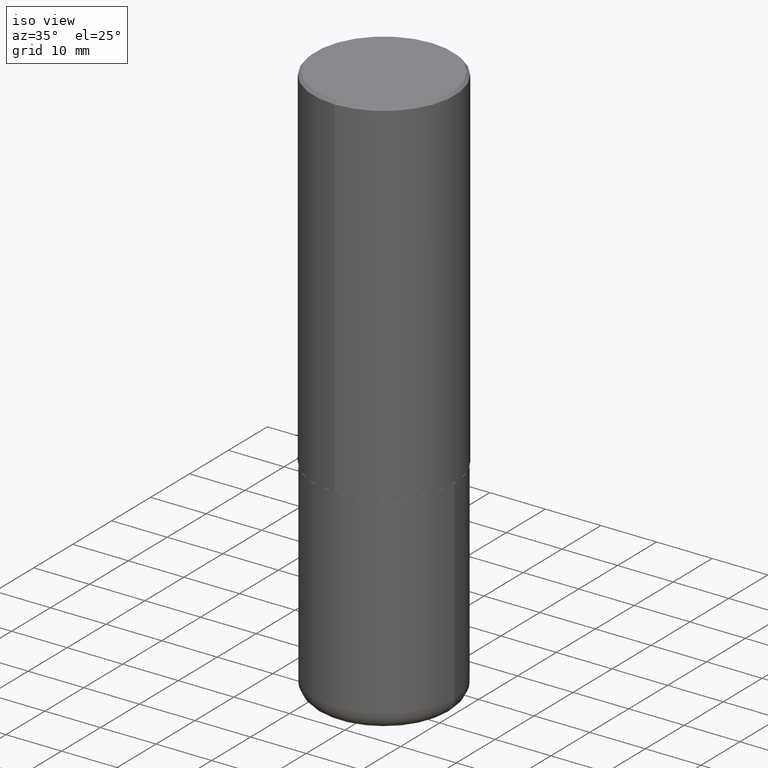
[diagram: clean part render]
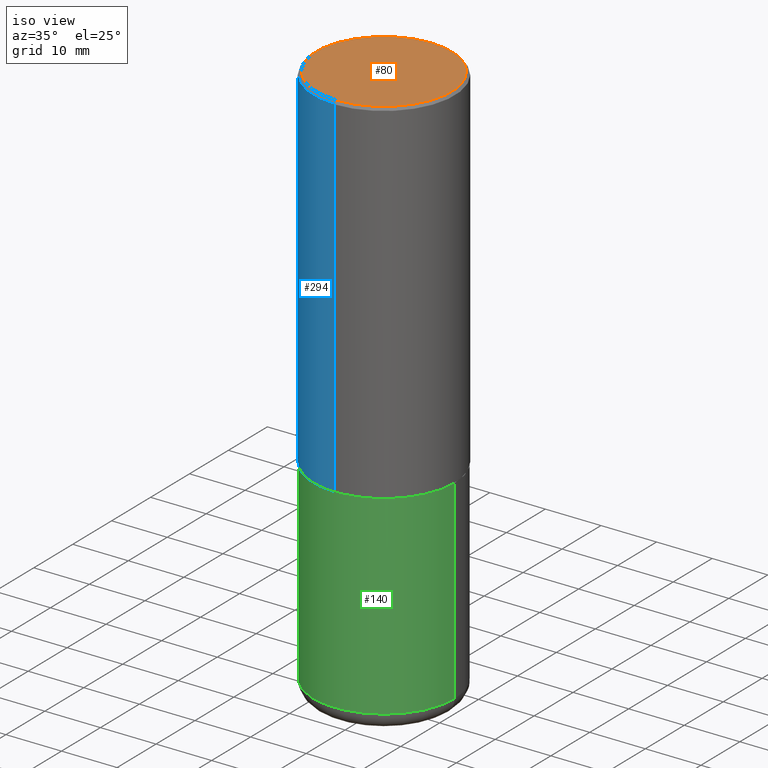
[diagram: same view with three faces highlighted in distinct colors, each labeled with its STEP entity id]
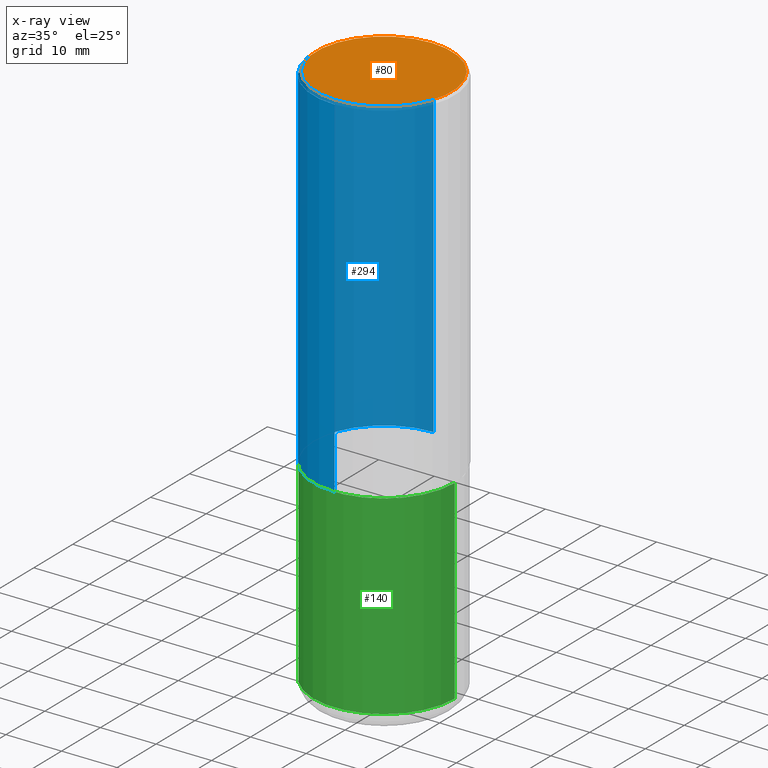
[diagram: x-ray of the same camera — body ghosted, the three highlighted faces saturated]
A machine part, iso view with three faces highlighted in distinct colors.
The next image is the same camera in x-ray (body ghosted, the three faces saturated) — at least one of them is partly hidden behind the body in this view.
Their STEP definitions:

[orange] entity #80 — the highlighted planar face has unit normal (0, -0, -1).
#10 = DIRECTION ( 'NONE',  ( 2.444946167972934647E-29, -3.492229786509738161E-15, -1.000000000000000000 ) ) ;
#56 = EDGE_CURVE ( 'NONE', #263, #322, #221, .T. ) ;
#80 = ADVANCED_FACE ( 'NONE', ( #181 ), #280, .F. ) ;
#82 = DIRECTION ( 'NONE',  ( -6.982962677686265922E-15, -1.000000000000000000, 3.492229786509738161E-15 ) ) ;
#92 = DIRECTION ( 'NONE',  ( -6.982962677686265922E-15, -1.000000000000000000, 3.492229786509738161E-15 ) ) ;
#113 = DIRECTION ( 'NONE',  ( 6.982962677686265922E-15, 1.000000000000000000, -3.492229786509738161E-15 ) ) ;
#136 = AXIS2_PLACEMENT_3D ( 'NONE', #252, #286, #92 ) ;
#139 = ORIENTED_EDGE ( 'NONE', *, *, #218, .T. ) ;
#181 = FACE_OUTER_BOUND ( 'NONE', #260, .T. ) ;
#183 = CARTESIAN_POINT ( 'NONE',  ( 3.421651712066270057E-15, 0.4799999999999998157, -1.449679880669387470E-15 ) ) ;
#201 = AXIS2_PLACEMENT_3D ( 'NONE', #403, #242, #82 ) ;
#213 = CIRCLE ( 'NONE', #136, 0.4799999999999998157 ) ;
#218 = EDGE_CURVE ( 'NONE', #322, #263, #213, .T. ) ;
#221 = CIRCLE ( 'NONE', #201, 0.4799999999999998157 ) ;
#240 = CARTESIAN_POINT ( 'NONE',  ( 3.351822085289406364E-15, 0.4799999999999998157, -1.562975089097030468E-15 ) ) ;
#242 = DIRECTION ( 'NONE',  ( -2.444946167972934928E-29, 3.492229786509738161E-15, 1.000000000000000000 ) ) ;
#252 = CARTESIAN_POINT ( 'NONE',  ( -5.540013713897219376E-45, 7.913058030796886371E-31, 2.265904168552862416E-16 ) ) ;
#260 = EDGE_LOOP ( 'NONE', ( #333, #139 ) ) ;
#263 = VERTEX_POINT ( 'NONE', #183 ) ;
#280 = PLANE ( 'NONE',  #282 ) ;
#282 = AXIS2_PLACEMENT_3D ( 'NONE', #240, #10, #113 ) ;
#286 = DIRECTION ( 'NONE',  ( -2.444946167972934928E-29, 3.492229786509738161E-15, 1.000000000000000000 ) ) ;
#322 = VERTEX_POINT ( 'NONE', #404 ) ;
#333 = ORIENTED_EDGE ( 'NONE', *, *, #56, .T. ) ;
#403 = CARTESIAN_POINT ( 'NONE',  ( -5.540013713897219376E-45, 7.913058030796886371E-31, 2.265904168552862416E-16 ) ) ;
#404 = CARTESIAN_POINT ( 'NONE',  ( -3.361644018908049661E-15, -0.4799999999999998157, 1.902860714379959855E-15 ) ) ;

[blue] entity #294 — the highlighted cylindrical surface (partial cylindrical patch) has radius 12.7 mm, axis along (-0, 0, 1).
#6 = VERTEX_POINT ( 'NONE', #117 ) ;
#21 = CARTESIAN_POINT ( 'NONE',  ( 3.552713678800501718E-15, 0.5000000000000001110, -1.746114893254869475E-15 ) ) ;
#28 = DIRECTION ( 'NONE',  ( -2.444946167972934928E-29, 3.492229786509738161E-15, 1.000000000000000000 ) ) ;
#29 = VERTEX_POINT ( 'NONE', #344 ) ;
#51 = AXIS2_PLACEMENT_3D ( 'NONE', #90, #28, #161 ) ;
#69 = AXIS2_PLACEMENT_3D ( 'NONE', #409, #339, #150 ) ;
#75 = CARTESIAN_POINT ( 'NONE',  ( 4.889892335945895815E-31, -6.984459573019513448E-17, -0.02000000000000010797 ) ) ;
#90 = CARTESIAN_POINT ( 'NONE',  ( 6.109920473764365540E-29, -8.727082236487837614E-15, -2.499000000000000110 ) ) ;
#96 = EDGE_LOOP ( 'NONE', ( #334, #137, #391, #230 ) ) ;
#101 = EDGE_CURVE ( 'NONE', #29, #6, #256, .T. ) ;
#117 = CARTESIAN_POINT ( 'NONE',  ( -3.430248998885764992E-15, -0.5000000000000001110, -0.01999999999999835937 ) ) ;
#126 = LINE ( 'NONE', #408, #407 ) ;
#137 = ORIENTED_EDGE ( 'NONE', *, *, #233, .T. ) ;
#144 = DIRECTION ( 'NONE',  ( -6.982962677686265922E-15, -1.000000000000000000, 3.491643216902136408E-15 ) ) ;
#150 = DIRECTION ( 'NONE',  ( -6.982962677686265922E-15, -1.000000000000000000, 3.492229786509738161E-15 ) ) ;
#153 = CYLINDRICAL_SURFACE ( 'NONE', #69, 0.5000000000000001110 ) ;
#157 = VECTOR ( 'NONE', #348, 39.37007874015748143 ) ;
#161 = DIRECTION ( 'NONE',  ( -6.982962677686266711E-15, -1.000000000000000000, 3.278217592397114284E-15 ) ) ;
#185 = EDGE_CURVE ( 'NONE', #200, #6, #126, .T. ) ;
#200 = VERTEX_POINT ( 'NONE', #319 ) ;
#230 = ORIENTED_EDGE ( 'NONE', *, *, #101, .F. ) ;
#231 = CIRCLE ( 'NONE', #51, 0.5000000000000002220 ) ;
#233 = EDGE_CURVE ( 'NONE', #266, #200, #231, .T. ) ;
#244 = LINE ( 'NONE', #21, #157 ) ;
#256 = CIRCLE ( 'NONE', #356, 0.5000000000000000000 ) ;
#266 = VERTEX_POINT ( 'NONE', #306 ) ;
#294 = ADVANCED_FACE ( 'NONE', ( #371 ), #153, .T. ) ;
#306 = CARTESIAN_POINT ( 'NONE',  ( 3.552713678800533273E-15, 0.4999999999999916178, -2.499000000000001886 ) ) ;
#319 = CARTESIAN_POINT ( 'NONE',  ( -3.491481338843073796E-15, -0.5000000000000089928, -2.498999999999998778 ) ) ;
#334 = ORIENTED_EDGE ( 'NONE', *, *, #357, .F. ) ;
#336 = DIRECTION ( 'NONE',  ( -2.444946167972934928E-29, 3.492229786509738161E-15, 1.000000000000000000 ) ) ;
#339 = DIRECTION ( 'NONE',  ( -2.444946167972934928E-29, 3.492229786509738161E-15, 1.000000000000000000 ) ) ;
#344 = CARTESIAN_POINT ( 'NONE',  ( 3.491481338843133355E-15, 0.4999999999999999445, -0.02000000000000185310 ) ) ;
#348 = DIRECTION ( 'NONE',  ( -2.444946167972934928E-29, 3.492229786509738161E-15, 1.000000000000000000 ) ) ;
#356 = AXIS2_PLACEMENT_3D ( 'NONE', #75, #336, #144 ) ;
#357 = EDGE_CURVE ( 'NONE', #266, #29, #244, .T. ) ;
#371 = FACE_OUTER_BOUND ( 'NONE', #96, .T. ) ;
#382 = DIRECTION ( 'NONE',  ( -2.444946167972934928E-29, 3.492229786509738161E-15, 1.000000000000000000 ) ) ;
#391 = ORIENTED_EDGE ( 'NONE', *, *, #185, .T. ) ;
#407 = VECTOR ( 'NONE', #382, 39.37007874015748143 ) ;
#408 = CARTESIAN_POINT ( 'NONE',  ( -3.491481338843133750E-15, -0.5000000000000001110, 1.746114893254869475E-15 ) ) ;
#409 = CARTESIAN_POINT ( 'NONE',  ( 0.000000000000000000, 0.000000000000000000, 0.000000000000000000 ) ) ;

[green] entity #140 — the highlighted cylindrical surface (partial cylindrical patch) has radius 12.7 mm, axis along (-0, 0, 1).
#2 = VERTEX_POINT ( 'NONE', #154 ) ;
#3 = EDGE_CURVE ( 'NONE', #106, #397, #16, .T. ) ;
#16 = LINE ( 'NONE', #111, #394 ) ;
#23 = EDGE_CURVE ( 'NONE', #257, #2, #77, .T. ) ;
#32 = AXIS2_PLACEMENT_3D ( 'NONE', #220, #379, #159 ) ;
#40 = ORIENTED_EDGE ( 'NONE', *, *, #3, .F. ) ;
#48 = CARTESIAN_POINT ( 'NONE',  ( 9.488418967998330085E-29, -1.354694759471140570E-14, -3.880000000000000338 ) ) ;
#50 = EDGE_CURVE ( 'NONE', #106, #257, #264, .T. ) ;
#61 = CYLINDRICAL_SURFACE ( 'NONE', #383, 0.5000000000000000000 ) ;
#77 = LINE ( 'NONE', #178, #164 ) ;
#83 = CARTESIAN_POINT ( 'NONE',  ( -0.5000000000000000000, -7.585111792109135179E-15, -2.500000000000000000 ) ) ;
#106 = VERTEX_POINT ( 'NONE', #400 ) ;
#111 = CARTESIAN_POINT ( 'NONE',  ( -0.5000000000000000000, 3.552713678800500929E-15, -2.459467545127452891E-29 ) ) ;
#140 = ADVANCED_FACE ( 'NONE', ( #284 ), #61, .T. ) ;
#149 = DIRECTION ( 'NONE',  ( -2.445468806185136597E-29, 3.491481338843145583E-15, 1.000000000000000000 ) ) ;
#154 = CARTESIAN_POINT ( 'NONE',  ( 0.5000000000000000000, -1.222018468595099830E-14, -2.500000000000000000 ) ) ;
#159 = DIRECTION ( 'NONE',  ( 1.000000000000000000, -6.982962677686269077E-15, 0.000000000000000000 ) ) ;
#164 = VECTOR ( 'NONE', #246, 39.37007874015748143 ) ;
#171 = CIRCLE ( 'NONE', #32, 0.5000000000000000000 ) ;
#178 = CARTESIAN_POINT ( 'NONE',  ( 0.5000000000000000000, -3.491481338843133355E-15, 2.438088387897967896E-29 ) ) ;
#198 = ORIENTED_EDGE ( 'NONE', *, *, #23, .T. ) ;
#220 = CARTESIAN_POINT ( 'NONE',  ( 6.113672015462842613E-29, -8.728703347107864943E-15, -2.500000000000000000 ) ) ;
#224 = EDGE_CURVE ( 'NONE', #397, #2, #171, .T. ) ;
#246 = DIRECTION ( 'NONE',  ( -2.445468806185136877E-29, 3.491481338843145188E-15, 1.000000000000000000 ) ) ;
#250 = CARTESIAN_POINT ( 'NONE',  ( 0.000000000000000000, 0.000000000000000000, 0.000000000000000000 ) ) ;
#254 = DIRECTION ( 'NONE',  ( 1.000000000000000000, -6.982962677686266711E-15, 4.876176775795935793E-29 ) ) ;
#257 = VERTEX_POINT ( 'NONE', #351 ) ;
#264 = CIRCLE ( 'NONE', #269, 0.5000000000000001110 ) ;
#269 = AXIS2_PLACEMENT_3D ( 'NONE', #48, #149, #276 ) ;
#276 = DIRECTION ( 'NONE',  ( 1.000000000000000000, -6.982962677686265133E-15, 0.000000000000000000 ) ) ;
#284 = FACE_OUTER_BOUND ( 'NONE', #359, .T. ) ;
#295 = ORIENTED_EDGE ( 'NONE', *, *, #224, .F. ) ;
#313 = DIRECTION ( 'NONE',  ( -2.445468806185136877E-29, 3.491481338843145188E-15, 1.000000000000000000 ) ) ;
#315 = DIRECTION ( 'NONE',  ( -2.445468806185136597E-29, 3.491481338843145583E-15, 1.000000000000000000 ) ) ;
#351 = CARTESIAN_POINT ( 'NONE',  ( 0.5000000000000001110, -1.703842893355454063E-14, -3.880000000000000338 ) ) ;
#359 = EDGE_LOOP ( 'NONE', ( #40, #364, #198, #295 ) ) ;
#364 = ORIENTED_EDGE ( 'NONE', *, *, #50, .T. ) ;
#379 = DIRECTION ( 'NONE',  ( -2.445468806185136597E-29, 3.491481338843145583E-15, 1.000000000000000000 ) ) ;
#383 = AXIS2_PLACEMENT_3D ( 'NONE', #250, #315, #254 ) ;
#394 = VECTOR ( 'NONE', #313, 39.37007874015748143 ) ;
#397 = VERTEX_POINT ( 'NONE', #83 ) ;
#400 = CARTESIAN_POINT ( 'NONE',  ( -0.5000000000000001110, -9.994233915910901612E-15, -3.880000000000000338 ) ) ;